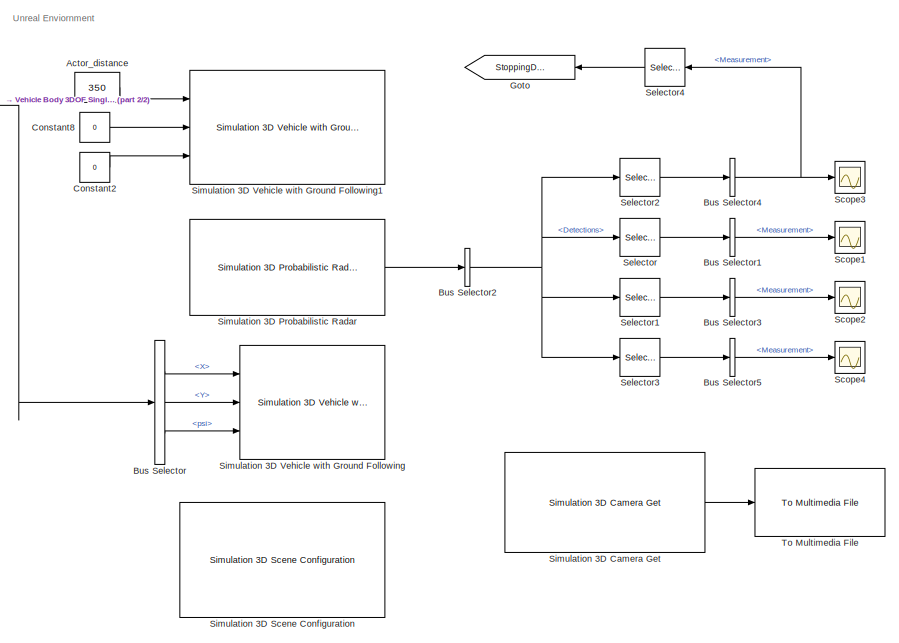
[diagram: root canvas - part 1/2, right side, full height]
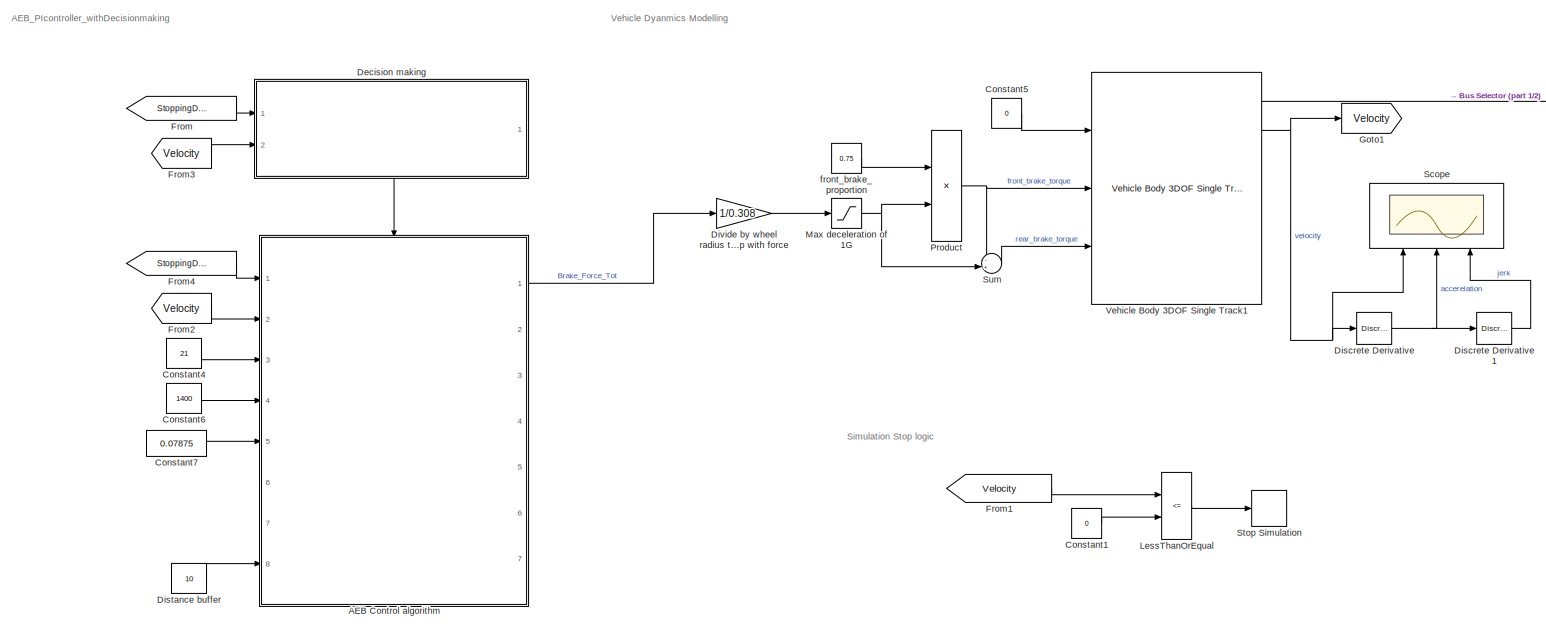
[diagram: root canvas - part 2/2, left side, full height]
MODEL slx_c5eb10850f56
KIND model
CONFIG AbsTol = auto
CONFIG EnableMultiTasking = off
CONFIG FixedStep = simtime
CONFIG InitFcn = clear all \n\n% These are the starting values \ninitial_stopping_distance = 350; % set the stopping distance in m (6.368 and 11 is max deccel -9.5)\ninitial_velocity = 37.77; % set the initial velocity in m/s\nroad_grade = 0; %set road grade in degrees\nsampletime = 0.01; %set the sample time of the controller \nTs = sampletime;\nsimtime = sampletime; %simulation set\n\ninitialdeccelcalc = -(initial_velocit...<+35ch>
CONFIG MaxStep = auto
CONFIG MinStep = auto
CONFIG RelTol = 1e-3
CONFIG SampleTimeConstraint = Unconstrained
CONFIG SolverName = ode4
CONFIG StartTime = 0.0
CONFIG StopTime = 20
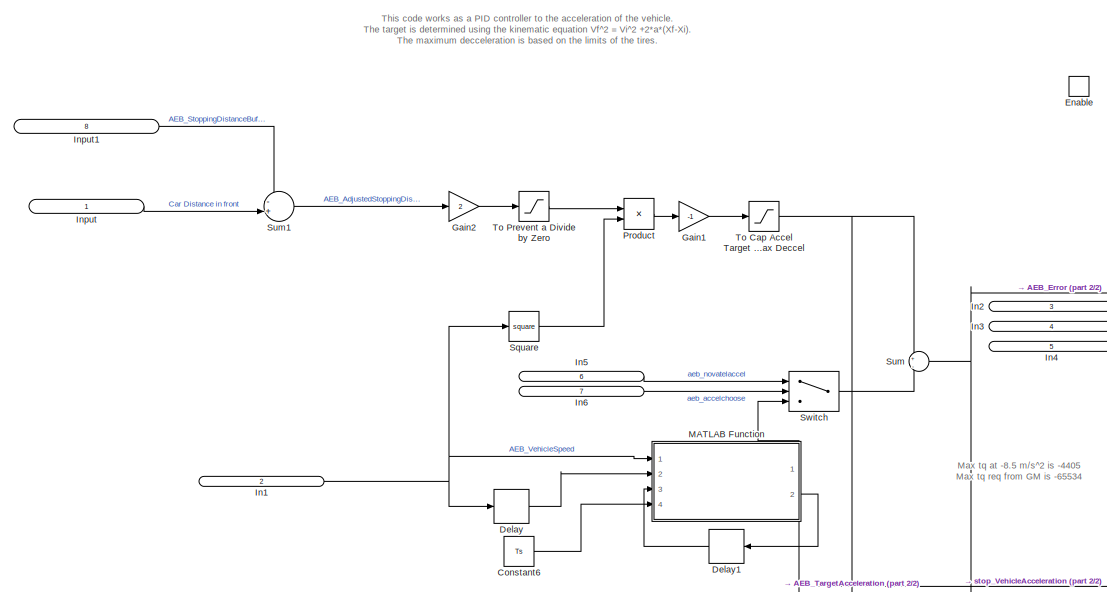
[diagram: AEB Control algorithm - part 1/2, left side, full height]
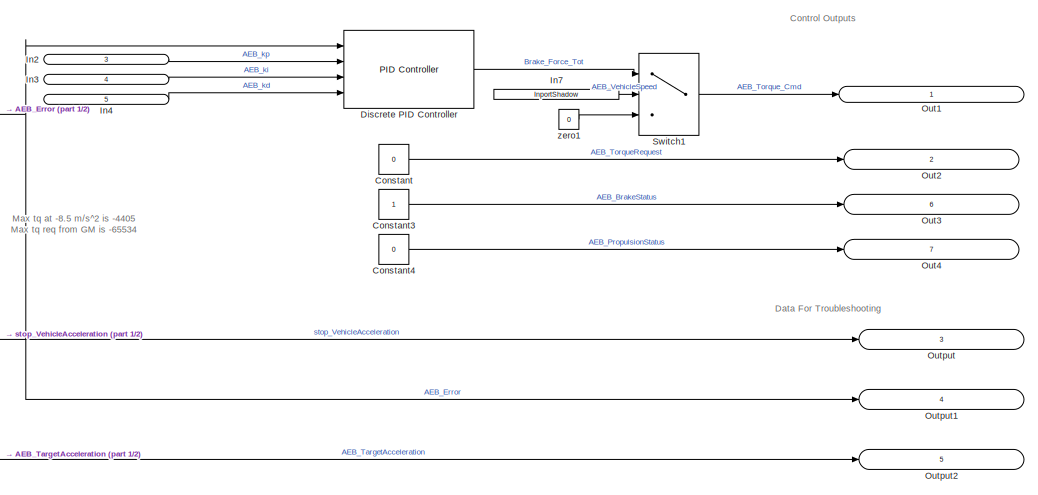
[diagram: AEB Control algorithm - part 2/2, bottom right region]
BLOCK [SubSystem] AEB Control algorithm
  AncestorBlock = autonomous_emergency_braking/Enabled\nSubsystem
  Ports = [8, 7, 1]
  RequestExecContextInheritance = off
  TreatAsAtomicUnit = on
BLOCK [Constant] AEB Control algorithm/Constant
  Value = 0
BLOCK [Constant] AEB Control algorithm/Constant3
BLOCK [Constant] AEB Control algorithm/Constant4
  Value = 0
BLOCK [Constant] AEB Control algorithm/Constant6
  Value = Ts
BLOCK [Delay] AEB Control algorithm/Delay
  DelayLength = 1
  InputPortMap = u0
  Ports = [1, 1]
BLOCK [Delay] AEB Control algorithm/Delay1
  DelayLength = 1
  InputPortMap = u0
  Ports = [1, 1]
BLOCK [Reference] AEB Control algorithm/Discrete PID Controller  REF=slpidlib/PID Controller
  Ports = [4, 1]
  SourceBlock = slpidlib/PID Controller
  SourceProductBaseCode = SL
  SourceType = PID 1dof
BLOCK [EnablePort] AEB Control algorithm/Enable
  Ports = []
BLOCK [Gain] AEB Control algorithm/Gain1
  Gain = -1
BLOCK [Gain] AEB Control algorithm/Gain2
  Gain = 2
BLOCK [Inport] AEB Control algorithm/In1
  IconDisplay = Signal name
  Port = 2
BLOCK [Inport] AEB Control algorithm/In2
  IconDisplay = Signal name
  Port = 3
BLOCK [Inport] AEB Control algorithm/In3
  IconDisplay = Signal name
  Port = 4
BLOCK [Inport] AEB Control algorithm/In4
  IconDisplay = Signal name
  Port = 5
BLOCK [Inport] AEB Control algorithm/In5
  IconDisplay = Signal name
  Port = 6
BLOCK [Inport] AEB Control algorithm/In6
  IconDisplay = Signal name
  Port = 7
BLOCK [InportShadow] AEB Control algorithm/In7
  IconDisplay = Signal name
  Port = 2
BLOCK [Inport] AEB Control algorithm/Input
  IconDisplay = Signal name
BLOCK [Inport] AEB Control algorithm/Input1
  IconDisplay = Signal name
  Port = 8
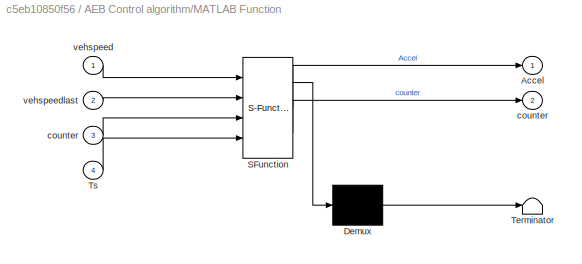
BLOCK [SubSystem] AEB Control algorithm/MATLAB Function
  ErrorFcn = Stateflow.Translate.translate
  PermitHierarchicalResolution = ExplicitOnly
  Ports = [4, 2]
  RequestExecContextInheritance = off
  SFBlockType = MATLAB Function
  TreatAsAtomicUnit = on
BLOCK [Demux] AEB Control algorithm/MATLAB Function/ Demux 
  Outputs = 1
  Ports = [1, 1]
BLOCK [S-Function] AEB Control algorithm/MATLAB Function/ SFunction 
  EnableBusSupport = on
  FunctionName = sf_sfun
  PortCounts = [4 3]
  Ports = [4, 3]
  SFcnIsStateOwnerBlock = off
  SFunctionDeploymentMode = off
  Tag = Stateflow S-Function 1
BLOCK [Terminator] AEB Control algorithm/MATLAB Function/ Terminator 
BLOCK [Outport] AEB Control algorithm/MATLAB Function/Accel
BLOCK [Inport] AEB Control algorithm/MATLAB Function/Ts
  Port = 4
BLOCK [Outport] AEB Control algorithm/MATLAB Function/counter
  Port = 2
BLOCK [Inport] AEB Control algorithm/MATLAB Function/counter 
  Port = 3
BLOCK [Inport] AEB Control algorithm/MATLAB Function/vehspeed
BLOCK [Inport] AEB Control algorithm/MATLAB Function/vehspeedlast
  Port = 2
BLOCK [Outport] AEB Control algorithm/Out1
  IconDisplay = Signal name
BLOCK [Outport] AEB Control algorithm/Out2
  IconDisplay = Signal name
  Port = 2
BLOCK [Outport] AEB Control algorithm/Out3
  IconDisplay = Signal name
  Port = 6
BLOCK [Outport] AEB Control algorithm/Out4
  IconDisplay = Signal name
  Port = 7
BLOCK [Outport] AEB Control algorithm/Output
  IconDisplay = Signal name
  Port = 3
BLOCK [Outport] AEB Control algorithm/Output1
  IconDisplay = Signal name
  Port = 4
BLOCK [Outport] AEB Control algorithm/Output2
  IconDisplay = Signal name
  Port = 5
BLOCK [Product] AEB Control algorithm/Product
  Inputs = /*
  Ports = [2, 1]
BLOCK [Math] AEB Control algorithm/Square
  Operator = square
  Ports = [1, 1]
BLOCK [Sum] AEB Control algorithm/Sum
  Inputs = +|-
  Ports = [2, 1]
BLOCK [Sum] AEB Control algorithm/Sum1
  Inputs = -+|
  Ports = [2, 1]
BLOCK [Switch] AEB Control algorithm/Switch
  Criteria = u2 > Threshold
  InputSameDT = off
  SaturateOnIntegerOverflow = off
BLOCK [Switch] AEB Control algorithm/Switch1
  Criteria = u2 > Threshold
  InputSameDT = off
  SaturateOnIntegerOverflow = off
BLOCK [Saturate] AEB Control algorithm/To Cap Accel Target at Max Deccel
  LowerLimit = -9.81
  UpperLimit = 0
BLOCK [Saturate] AEB Control algorithm/To Prevent a Divide by Zero
  LowerLimit = 0.001
  UpperLimit = inf
BLOCK [Constant] AEB Control algorithm/zero1
  Value = 0
BLOCK [Constant] Actor_distance
  NameLocation = top
  Value = 350
BLOCK [BusSelector] Bus Selector
  OutputSignals = InertFrm.Cg.Disp.X,InertFrm.Cg.Disp.Y,InertFrm.Cg.Ang.psi
  Ports = [1, 3]
BLOCK [BusSelector] Bus Selector1
  OutputSignals = Measurement
  Ports = [1, 1]
BLOCK [BusSelector] Bus Selector2
  OutputSignals = Detections
  Ports = [1, 1]
BLOCK [BusSelector] Bus Selector3
  OutputSignals = Measurement
  Ports = [1, 1]
BLOCK [BusSelector] Bus Selector4
  OutputSignals = Measurement
  Ports = [1, 1]
BLOCK [BusSelector] Bus Selector5
  OutputSignals = Measurement
  Ports = [1, 1]
BLOCK [Constant] Constant1
  Value = 0
BLOCK [Constant] Constant2
  Value = 0
BLOCK [Constant] Constant4
  Value = 21
BLOCK [Constant] Constant5
  Value = 0
BLOCK [Constant] Constant6
  Value = 1400
BLOCK [Constant] Constant7
  Value = 0.07875
BLOCK [Constant] Constant8
  Value = 0
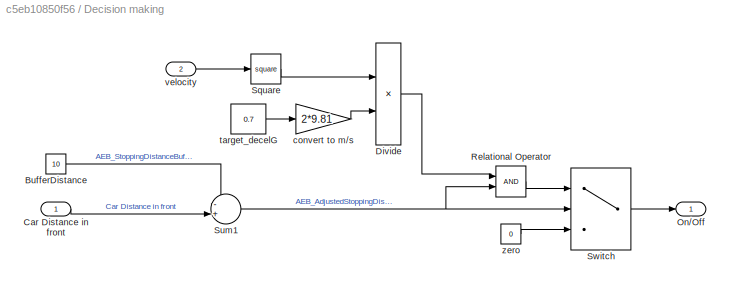
BLOCK [SubSystem] Decision making
  NameLocation = top
  PortSchema = {"entries":[{"content":{"sides":[{"content":{"connectorIds":["In1","In2"]},"type":"ConnectorPlacement.EquallySpacedRectSide","uuid":"07d6ad26-48ba-4c38-b484-67a208300176"},{"content":{"connectorIds":[],"side":"RIGHT"},"type":"ConnectorPlacement.EquallySpacedRectSide","uuid":"bb97d993-8e0c-453d-bb06-d9e692861d0d"},{"content":{"connectorIds":[],"side":"TOP"},"type":"ConnectorPlacement.EquallySpacedR...<+390ch>
  Ports = [2, 1]
  RequestExecContextInheritance = off
BLOCK [Constant] Decision making/BufferDistance
  Value = 10
BLOCK [Inport] Decision making/Car Distance in front
BLOCK [Product] Decision making/Divide
  Inputs = */
  Ports = [2, 1]
BLOCK [Outport] Decision making/On//Off
BLOCK [RelationalOperator] Decision making/Relational Operator
  InputSameDT = off
  OutDataTypeStr = boolean
  Ports = [2, 1]
  RndMeth = Simplest
BLOCK [Math] Decision making/Square
  Operator = square
  Ports = [1, 1]
BLOCK [Sum] Decision making/Sum1
  Inputs = -+|
  Ports = [2, 1]
BLOCK [Switch] Decision making/Switch
  Criteria = u2 > Threshold
  InputSameDT = off
  SaturateOnIntegerOverflow = off
BLOCK [Gain] Decision making/convert to m//s
  Gain = 2*9.81
BLOCK [Constant] Decision making/target_decelG
  Value = 0.7
BLOCK [Inport] Decision making/velocity
  NameLocation = top
  Port = 2
BLOCK [Constant] Decision making/zero
  Value = 0
BLOCK [Reference] Discrete Derivative  REF=simulink/Discrete/Discrete Derivative
  Ports = [1, 1]
  SourceBlock = simulink/Discrete/Discrete Derivative
  SourceProductBaseCode = SL
  SourceType = Discrete Derivative
BLOCK [Reference] Discrete Derivative1  REF=simulink/Discrete/Discrete Derivative
  Ports = [1, 1]
  SourceBlock = simulink/Discrete/Discrete Derivative
  SourceProductBaseCode = SL
  SourceType = Discrete Derivative
BLOCK [Constant] Distance buffer
  Value = 10
BLOCK [Gain] Divide by wheel radius to come up with force
  Gain = 1/0.308
BLOCK [From] From
  GotoTag = StoppingDistance
  NameLocation = top
BLOCK [From] From1
  GotoTag = Velocity
  TagVisibility = global
BLOCK [From] From2
  GotoTag = Velocity
  TagVisibility = global
BLOCK [From] From3
  GotoTag = Velocity
  TagVisibility = global
BLOCK [From] From4
  GotoTag = StoppingDistance
  NameLocation = top
BLOCK [Goto] Goto
  GotoTag = StoppingDistance
  NameLocation = top
BLOCK [Goto] Goto1
  GotoTag = Velocity
  TagVisibility = global
BLOCK [RelationalOperator] LessThanOrEqual
  InputSameDT = off
  Operator = <=
  OutDataTypeStr = boolean
  Ports = [2, 1]
  RndMeth = Simplest
BLOCK [Saturate] Max deceleration of 1G
  LowerLimit = -1605*10
  NameLocation = top
  UpperLimit = 0
BLOCK [Product] Product
  Ports = [2, 1]
BLOCK [Scope] Scope
  Floating = off
  NameLocation = right
  NumInputPorts = 3
  Ports = [3]
  ScopeSpecificationString = Simulink.scopes.TimeScopeBlockCfg('CurrentConfiguration', extmgr.ConfigurationSet(extmgr.Configuration('Core','General UI',true),extmgr.Configuration('Core','Source UI',true),extmgr.Configuration('Sources','WiredSimulink',true),extmgr.Configuration('Visuals','Time Domain',true,'SerializedDisplays',{struct('MinYLimReal','-49.32727','MaxYLimReal','47.44747','YLabelReal','','MinYLimMag','0.00000','Ma...<+1425ch>
BLOCK [Scope] Scope1
  Floating = off
  NumInputPorts = 1
  Ports = [1]
  ScopeSpecificationString = Simulink.scopes.TimeScopeBlockCfg('CurrentConfiguration', extmgr.ConfigurationSet(extmgr.Configuration('Core','General UI',true),extmgr.Configuration('Core','Source UI',true),extmgr.Configuration('Sources','WiredSimulink',true,'DataLoggingVariableName','ScopeData1'),extmgr.Configuration('Visuals','Time Domain',true,'SerializedDisplays',{struct('MinYLimReal','-1.00000','MaxYLimReal','1.00000','YLab...<+1462ch>
BLOCK [Scope] Scope2
  Floating = off
  NumInputPorts = 1
  Ports = [1]
  ScopeSpecificationString = Simulink.scopes.TimeScopeBlockCfg('CurrentConfiguration', extmgr.ConfigurationSet(extmgr.Configuration('Core','General UI',true),extmgr.Configuration('Core','Source UI',true),extmgr.Configuration('Sources','WiredSimulink',true,'DataLoggingVariableName','ScopeData2'),extmgr.Configuration('Visuals','Time Domain',true,'SerializedDisplays',{struct('MinYLimReal','-2.09226','MaxYLimReal','9.54865','YLab...<+1462ch>
BLOCK [Scope] Scope3
  Floating = off
  NumInputPorts = 1
  Ports = [1]
  ScopeSpecificationString = Simulink.scopes.TimeScopeBlockCfg('CurrentConfiguration', extmgr.ConfigurationSet(extmgr.Configuration('Core','General UI',true),extmgr.Configuration('Core','Source UI',true),extmgr.Configuration('Sources','WiredSimulink',true,'DataLoggingVariableName','ScopeData3'),extmgr.Configuration('Visuals','Time Domain',true,'SerializedDisplays',{struct('MinYLimReal','-38.52119','MaxYLimReal','337.37943','Y...<+1491ch>
BLOCK [Scope] Scope4
  Floating = off
  NumInputPorts = 1
  Ports = [1]
  ScopeSpecificationString = Simulink.scopes.TimeScopeBlockCfg('CurrentConfiguration', extmgr.ConfigurationSet(extmgr.Configuration('Core','General UI',true),extmgr.Configuration('Core','Source UI',true),extmgr.Configuration('Sources','WiredSimulink',true,'DataLoggingVariableName','ScopeData4'),extmgr.Configuration('Visuals','Time Domain',true,'SerializedDisplays',{struct('MinYLimReal','-1.00000','MaxYLimReal','1.00000','YLab...<+1462ch>
BLOCK [Selector] Selector
  IndexOptions = Index vector (dialog)
  Indices = [3]
  InputPortWidth = 10
  OutputSizes = 1
  Ports = [1, 1]
BLOCK [Selector] Selector1
  IndexOptions = Index vector (dialog)
  Indices = [5]
  InputPortWidth = 10
  OutputSizes = 1
  Ports = [1, 1]
BLOCK [Selector] Selector2
  IndexOptions = Index vector (dialog)
  Indices = [1]
  InputPortWidth = 10
  OutputSizes = 1
  Ports = [1, 1]
BLOCK [Selector] Selector3
  IndexOptions = Index vector (dialog)
  Indices = [7]
  InputPortWidth = 10
  OutputSizes = 1
  Ports = [1, 1]
BLOCK [Selector] Selector4
  IndexOptions = Index vector (dialog)
  Indices = [1]
  InputPortWidth = 3
  NameLocation = top
  OutputSizes = 1
  Ports = [1, 1]
BLOCK [Reference] Simulation 3D Camera Get  REF=sim3dlib/Simulation 3D Camera Get
  Ports = [0, 1]
  Priority = 1
  SourceBlock = sim3dlib/Simulation 3D Camera Get
  SourceProductBaseCode = AE,DR,UV,VE
  SourceType = Simulation 3D Camera Get
BLOCK [Reference] Simulation 3D Probabilistic Radar  REF=sim3dprobsensorlib/Simulation 3D Probabilistic Radar
  Ports = [0, 1]
  Priority = 1
  SourceBlock = sim3dprobsensorlib/Simulation 3D Probabilistic Radar
  SourceProductBaseCode = AE,DR,UV,VE
  SourceType = Simulation 3D Probabilistic Radar
BLOCK [Reference] Simulation 3D Scene Configuration  REF=sim3dlib/Simulation 3D Scene Configuration
  Ports = []
  Priority = 0
  SourceBlock = sim3dlib/Simulation 3D Scene Configuration
  SourceProductBaseCode = AE,DR,UV,VE
  SourceType = Simulation 3D Scene Configuration
BLOCK [Reference] Simulation 3D Vehicle with Ground Following  REF=vdynlib/Vehicle Scenarios/Sim3D/Sim3D Vehicle/Components/Simulation 3D Vehicle with Ground Following
  Ports = [3]
  Priority = -1
  SourceBlock = vdynlib/Vehicle Scenarios/Sim3D/Sim3D Vehicle/Components/Simulation 3D Vehicle with Ground Following
  SourceProductBaseCode = VE
  SourceType = Simulation 3D Vehicle with Ground Following
BLOCK [Reference] Simulation 3D Vehicle with Ground Following1  REF=vdynlib/Vehicle Scenarios/Sim3D/Sim3D Vehicle/Components/Simulation 3D Vehicle with Ground Following
  Ports = [3]
  Priority = -1
  SourceBlock = vdynlib/Vehicle Scenarios/Sim3D/Sim3D Vehicle/Components/Simulation 3D Vehicle with Ground Following
  SourceProductBaseCode = VE
  SourceType = Simulation 3D Vehicle with Ground Following
BLOCK [Stop] Stop Simulation
BLOCK [Sum] Sum
  Inputs = -+|
  Ports = [2, 1]
BLOCK [Reference] To Multimedia File  REF=dspvision/To Multimedia File
  Ports = [1]
  SourceBlock = dspvision/To Multimedia File
  SourceProductBaseCode = DS,HW,VP
  SourceType = To Multimedia File
BLOCK [Reference] Vehicle Body 3DOF Single Track1  REF=autolibshared/Vehicle Body 3DOF Single Track
  Ports = [3, 7]
  SourceBlock = autolibshared/Vehicle Body 3DOF Single Track
  SourceProductBaseCode = PW,DR,MT,UV,VE
  SourceType = Vehicle Body 3DOF Lateral
BLOCK [Constant] front_brake_proportion
  NameLocation = top
  Value = 0.75
ANNOTATION (root): AEB_PIcontroller_withDecisionmaking
ANNOTATION (root): Simulation Stop logic
ANNOTATION (root): Unreal Enviornment
ANNOTATION (root): Vehicle Dyanmics Modelling
ANNOTATION AEB Control algorithm: Control Outputs
ANNOTATION AEB Control algorithm: Data For Troubleshooting
ANNOTATION AEB Control algorithm: Max tq at -8.5 m/s^2 is -4405 Max tq req from GM is -65534
ANNOTATION AEB Control algorithm: This code works as a PID controller to the acceleration of the vehicle. The target is determined using the kinematic equation Vf^2 = Vi^2 +2*a*(Xf-Xi). The maximum decceleration is based on the limits of the tires.
LINE AEB Control algorithm:1 -> Divide by wheel radius to come up with force:1
LINE Actor_distance:1 -> Simulation 3D Vehicle with Ground Following1:1
LINE Bus Selector1:1 -> Scope1:1
NET Bus Selector2:1 -> Selector1:1, Selector2:1, Selector3:1, Selector:1
LINE Bus Selector3:1 -> Scope2:1
NET Bus Selector4:1 -> Scope3:1, Selector4:1
LINE Bus Selector5:1 -> Scope4:1
LINE Bus Selector:1 -> Simulation 3D Vehicle with Ground Following:1
LINE Bus Selector:2 -> Simulation 3D Vehicle with Ground Following:2
LINE Bus Selector:3 -> Simulation 3D Vehicle with Ground Following:3
LINE Constant1:1 -> LessThanOrEqual:2
LINE Constant2:1 -> Simulation 3D Vehicle with Ground Following1:3
LINE Constant4:1 -> AEB Control algorithm:3
LINE Constant5:1 -> Vehicle Body 3DOF Single Track1:1
LINE Constant6:1 -> AEB Control algorithm:4
LINE Constant7:1 -> AEB Control algorithm:5
LINE Constant8:1 -> Simulation 3D Vehicle with Ground Following1:2
LINE Decision making/BufferDistance:1 -> Decision making/Sum1:1
LINE Decision making/Car Distance in front:1 -> Decision making/Sum1:2
LINE Decision making/Divide:1 -> Decision making/Relational Operator:1
LINE Decision making/Relational Operator:1 -> Decision making/Switch:1
LINE Decision making/Square:1 -> Decision making/Divide:1
NET Decision making/Sum1:1 -> Decision making/Relational Operator:2, Decision making/Switch:2
LINE Decision making/Switch:1 -> Decision making/On//Off:1
LINE Decision making/convert to m//s:1 -> Decision making/Divide:2
LINE Decision making/target_decelG:1 -> Decision making/convert to m//s:1
LINE Decision making/velocity:1 -> Decision making/Square:1
LINE Decision making/zero:1 -> Decision making/Switch:3
LINE Decision making:1 -> AEB Control algorithm:enable
LINE Discrete Derivative1:1 -> Scope:3
NET Discrete Derivative:1 -> Discrete Derivative1:1, Scope:2
LINE Distance buffer:1 -> AEB Control algorithm:8
LINE Divide by wheel radius to come up with force:1 -> Max deceleration of 1G:1
LINE From1:1 -> LessThanOrEqual:1
LINE From2:1 -> AEB Control algorithm:2
LINE From3:1 -> Decision making:2
LINE From4:1 -> AEB Control algorithm:1
LINE From:1 -> Decision making:1
LINE LessThanOrEqual:1 -> Stop Simulation:1
NET Max deceleration of 1G:1 -> Product:2, Sum:2
NET Product:1 -> Sum:1, Vehicle Body 3DOF Single Track1:2
LINE Selector1:1 -> Bus Selector3:1
LINE Selector2:1 -> Bus Selector4:1
LINE Selector3:1 -> Bus Selector5:1
LINE Selector4:1 -> Goto:1
LINE Selector:1 -> Bus Selector1:1
LINE Simulation 3D Camera Get:1 -> To Multimedia File:1
LINE Simulation 3D Probabilistic Radar:1 -> Bus Selector2:1
LINE Sum:1 -> Vehicle Body 3DOF Single Track1:3
LINE Vehicle Body 3DOF Single Track1:1 -> Bus Selector:1
NET Vehicle Body 3DOF Single Track1:2 -> Discrete Derivative:1, Goto1:1, Scope:1
LINE front_brake_proportion:1 -> Product:1
note: NET lines group one-source signal fan-out (src -> all destinations, sorted); 1:1 wires keep LINE
CHART AEB Control algorithm/MATLAB Function states=1 transitions=1
  STATE_LABEL 'eML_blk_kernel()'
  STATE_LABEL 'SCRIPT:\nfunction [Accel, counter] = deriv(vehspeed, vehspeedlast, counter, Ts)\n \nif counter == 0\n    u = 0; \n    counter = 1;\nelse\n    u = (vehspeed - vehspeedlast)/Ts;\nend\n\nAccel = u;\n'
CHART  states=0 transitions=0
